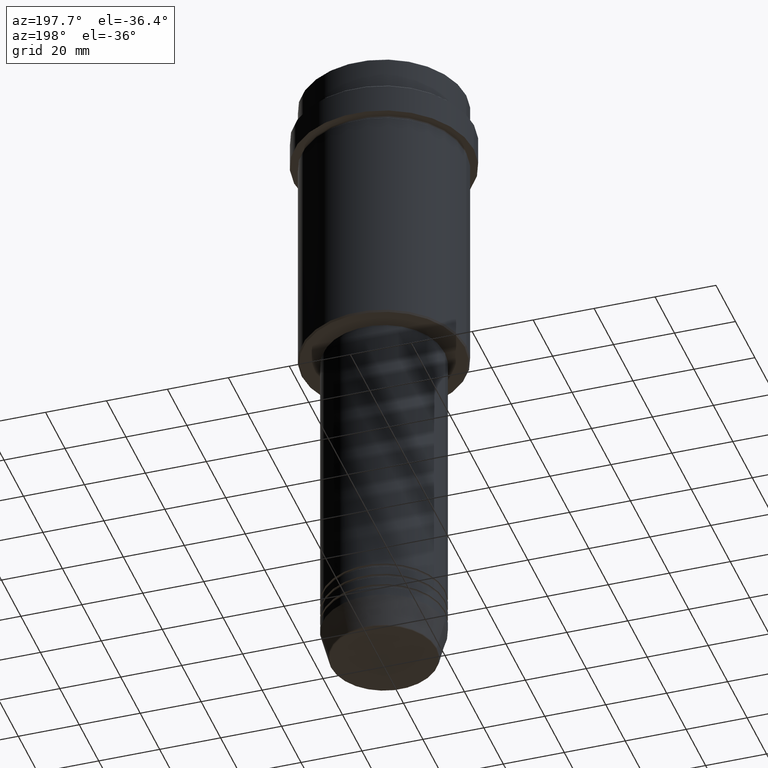
[diagram: clean part render]
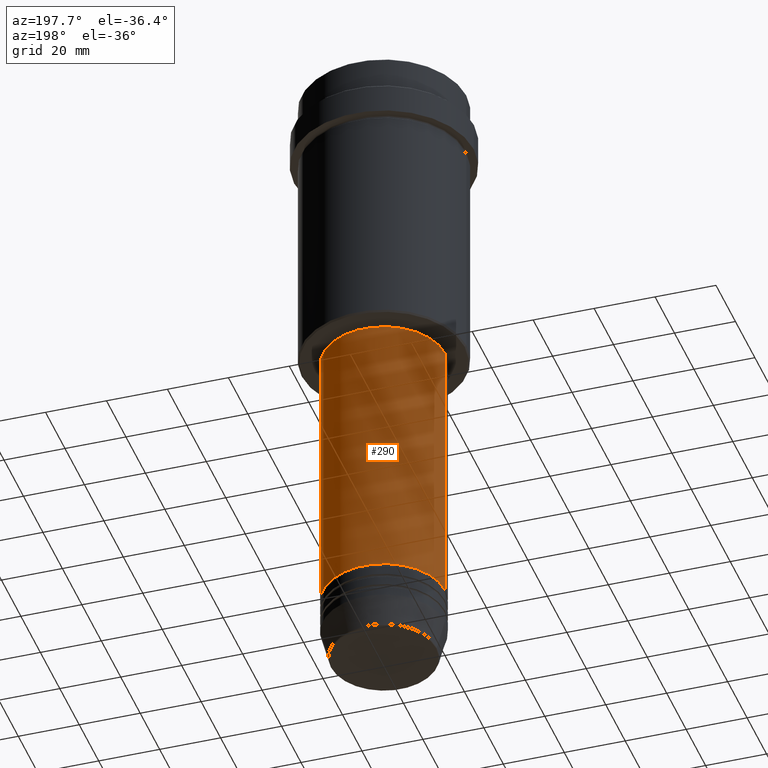
[diagram: same view with one face highlighted and labeled with its STEP entity id]
A machine part, auxiliary view. The second image highlights one B-rep face of the part: STEP entity #290.
In plain terms, the highlighted cylindrical surface (partial cylindrical patch) has radius 20 mm, axis along (-0, -0, 1).
Its self-contained STEP definition (entity closure, byte-faithful):
#31 = VERTEX_POINT ( 'NONE', #300 ) ;
#45 = DIRECTION ( 'NONE',  ( 1.000000000000000000, 0.000000000000000000, 0.000000000000000000 ) ) ;
#98 = LINE ( 'NONE', #1205, #910 ) ;
#116 = DIRECTION ( 'NONE',  ( -0.000000000000000000, -0.000000000000000000, 1.000000000000000000 ) ) ;
#139 = CARTESIAN_POINT ( 'NONE',  ( 0.000000000000000000, 0.000000000000000000, 0.000000000000000000 ) ) ;
#213 = EDGE_CURVE ( 'NONE', #938, #31, #98, .T. ) ;
#226 = CIRCLE ( 'NONE', #321, 20.00000000000000000 ) ;
#231 = ORIENTED_EDGE ( 'NONE', *, *, #650, .F. ) ;
#290 = ADVANCED_FACE ( 'NONE', ( #362 ), #1127, .T. ) ;
#300 = CARTESIAN_POINT ( 'NONE',  ( -20.00000000000000000, 2.449293598294706513E-15, -99.00000000000000000 ) ) ;
#304 = CARTESIAN_POINT ( 'NONE',  ( 20.00000000000000000, 0.000000000000000000, -99.00000000000000000 ) ) ;
#321 = AXIS2_PLACEMENT_3D ( 'NONE', #694, #788, #45 ) ;
#362 = FACE_OUTER_BOUND ( 'NONE', #835, .T. ) ;
#394 = VECTOR ( 'NONE', #486, 1000.000000000000000 ) ;
#443 = CARTESIAN_POINT ( 'NONE',  ( 0.000000000000000000, 0.000000000000000000, -99.00000000000000000 ) ) ;
#486 = DIRECTION ( 'NONE',  ( -0.000000000000000000, -0.000000000000000000, 1.000000000000000000 ) ) ;
#536 = DIRECTION ( 'NONE',  ( -0.000000000000000000, -0.000000000000000000, 1.000000000000000000 ) ) ;
#543 = DIRECTION ( 'NONE',  ( 1.000000000000000000, 0.000000000000000000, 0.000000000000000000 ) ) ;
#583 = DIRECTION ( 'NONE',  ( 1.000000000000000000, 0.000000000000000000, 0.000000000000000000 ) ) ;
#598 = CARTESIAN_POINT ( 'NONE',  ( 20.00000000000000000, 0.000000000000000000, 0.000000000000000000 ) ) ;
#650 = EDGE_CURVE ( 'NONE', #909, #31, #1417, .T. ) ;
#694 = CARTESIAN_POINT ( 'NONE',  ( 0.000000000000000000, 0.000000000000000000, -190.9999999999999147 ) ) ;
#716 = CARTESIAN_POINT ( 'NONE',  ( -20.00000000000000000, 2.449293598294706513E-15, -190.9999999999999147 ) ) ;
#778 = EDGE_CURVE ( 'NONE', #867, #909, #917, .T. ) ;
#788 = DIRECTION ( 'NONE',  ( -0.000000000000000000, -0.000000000000000000, 1.000000000000000000 ) ) ;
#811 = EDGE_CURVE ( 'NONE', #867, #938, #226, .T. ) ;
#813 = ORIENTED_EDGE ( 'NONE', *, *, #811, .T. ) ;
#835 = EDGE_LOOP ( 'NONE', ( #813, #1091, #231, #991 ) ) ;
#867 = VERTEX_POINT ( 'NONE', #1253 ) ;
#909 = VERTEX_POINT ( 'NONE', #304 ) ;
#910 = VECTOR ( 'NONE', #116, 1000.000000000000000 ) ;
#917 = LINE ( 'NONE', #598, #394 ) ;
#938 = VERTEX_POINT ( 'NONE', #716 ) ;
#991 = ORIENTED_EDGE ( 'NONE', *, *, #778, .F. ) ;
#1091 = ORIENTED_EDGE ( 'NONE', *, *, #213, .T. ) ;
#1127 = CYLINDRICAL_SURFACE ( 'NONE', #1282, 20.00000000000000000 ) ;
#1205 = CARTESIAN_POINT ( 'NONE',  ( -20.00000000000000000, 2.449293598294706513E-15, 0.000000000000000000 ) ) ;
#1242 = AXIS2_PLACEMENT_3D ( 'NONE', #443, #536, #543 ) ;
#1253 = CARTESIAN_POINT ( 'NONE',  ( 20.00000000000000000, 0.000000000000000000, -190.9999999999999147 ) ) ;
#1282 = AXIS2_PLACEMENT_3D ( 'NONE', #139, #1360, #583 ) ;
#1360 = DIRECTION ( 'NONE',  ( -0.000000000000000000, -0.000000000000000000, 1.000000000000000000 ) ) ;
#1417 = CIRCLE ( 'NONE', #1242, 20.00000000000000000 ) ;